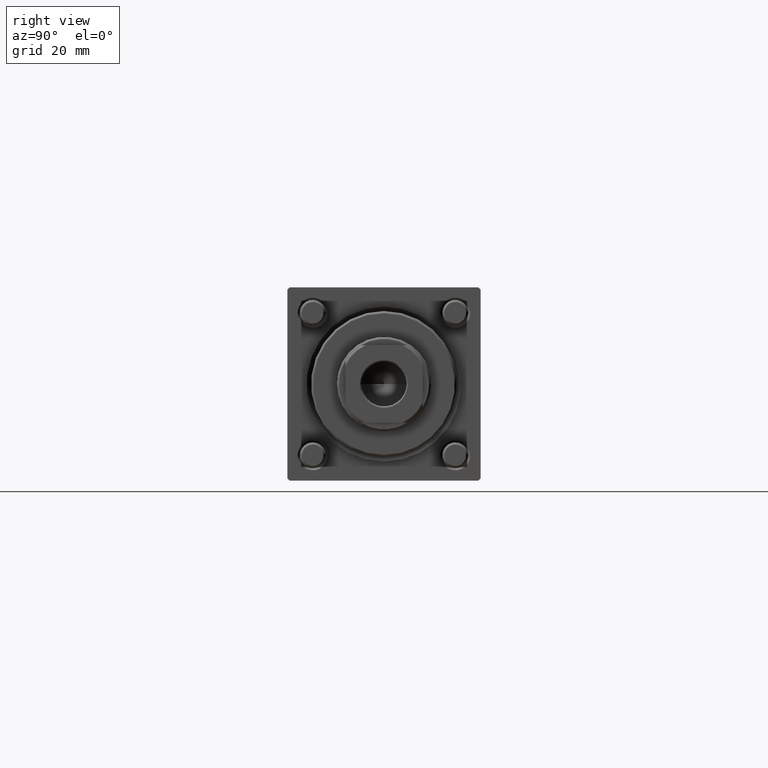
[diagram: clean part render]
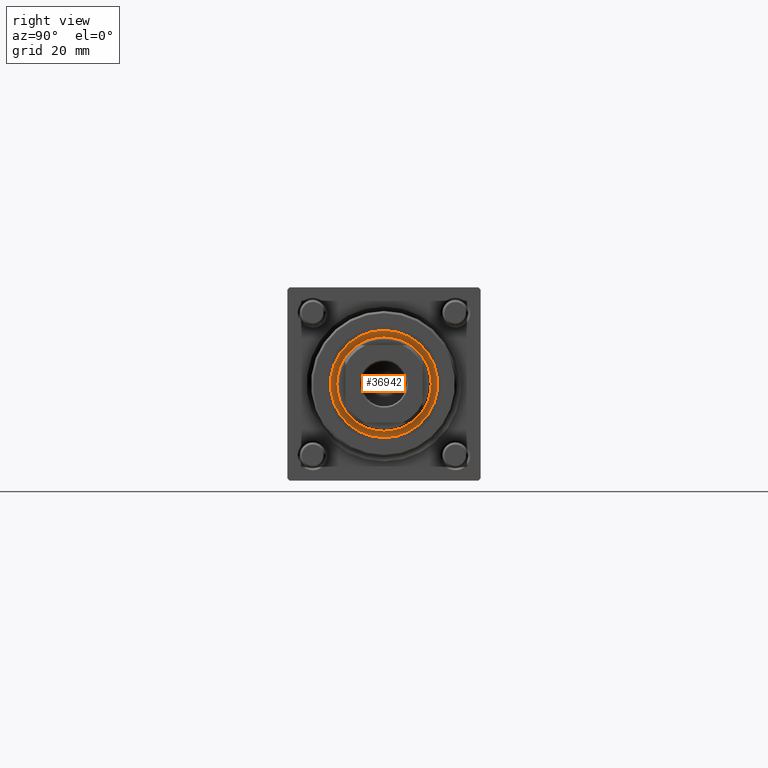
[diagram: same view with one face highlighted and labeled with its STEP entity id]
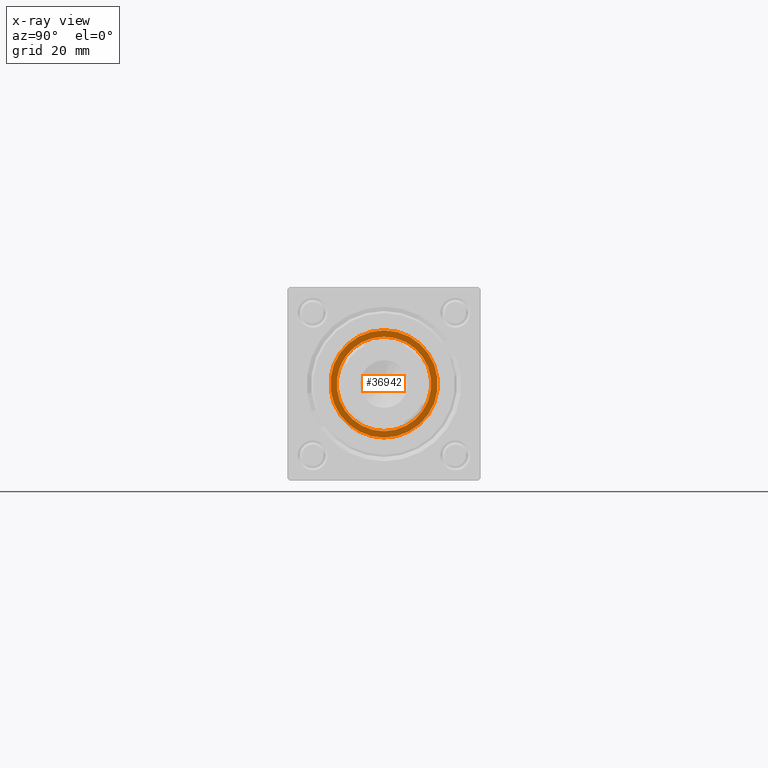
[diagram: x-ray of the same camera — body ghosted, the highlighted face saturated]
A machine part, right view. The second image highlights one B-rep face of the part: STEP entity #36942.
The next image is the same camera in x-ray: the body ghosted, the highlighted face saturated — about 0% of this face is hidden behind the body in this view.
In plain terms, the highlighted planar face has unit normal (1, 0, 0).
Its self-contained STEP definition (entity closure, byte-faithful):
#998 = FACE_BOUND ( 'NONE', #49648, .T. ) ;
#2126 = DIRECTION ( 'NONE',  ( 0.000000000000000000, 0.000000000000000000, 1.000000000000000000 ) ) ;
#2406 = DIRECTION ( 'NONE',  ( 1.000000000000000000, 0.000000000000000000, 0.000000000000000000 ) ) ;
#3265 = CARTESIAN_POINT ( 'NONE',  ( 0.000000000000000000, 0.000000000000000000, 40.20000000000000284 ) ) ;
#3458 = DIRECTION ( 'NONE',  ( 1.000000000000000000, 0.000000000000000000, 0.000000000000000000 ) ) ;
#3530 = ORIENTED_EDGE ( 'NONE', *, *, #40065, .T. ) ;
#3885 = EDGE_LOOP ( 'NONE', ( #35769, #3530 ) ) ;
#7404 = VERTEX_POINT ( 'NONE', #16777 ) ;
#7771 = DIRECTION ( 'NONE',  ( -0.000000000000000000, -0.000000000000000000, -1.000000000000000000 ) ) ;
#13619 = DIRECTION ( 'NONE',  ( 1.000000000000000000, 0.000000000000000000, 0.000000000000000000 ) ) ;
#13798 = CARTESIAN_POINT ( 'NONE',  ( 0.000000000000000000, 0.000000000000000000, 40.20000000000000284 ) ) ;
#13938 = PLANE ( 'NONE',  #20020 ) ;
#15645 = AXIS2_PLACEMENT_3D ( 'NONE', #13798, #31360, #44576 ) ;
#16777 = CARTESIAN_POINT ( 'NONE',  ( -11.00000000000000000, 1.347111479062088405E-15, 40.20000000000000284 ) ) ;
#16838 = EDGE_CURVE ( 'NONE', #42104, #7404, #50525, .T. ) ;
#19333 = CARTESIAN_POINT ( 'NONE',  ( 11.00000000000000000, 0.000000000000000000, 40.20000000000000284 ) ) ;
#19528 = CIRCLE ( 'NONE', #27780, 11.00000000000000000 ) ;
#20020 = AXIS2_PLACEMENT_3D ( 'NONE', #33121, #44716, #22832 ) ;
#22029 = CIRCLE ( 'NONE', #15645, 12.50000000000000000 ) ;
#22832 = DIRECTION ( 'NONE',  ( 1.000000000000000000, 0.000000000000000000, -0.000000000000000000 ) ) ;
#25354 = VERTEX_POINT ( 'NONE', #48661 ) ;
#27058 = CARTESIAN_POINT ( 'NONE',  ( -12.50000000000000000, 1.530808498934191521E-15, 40.20000000000000284 ) ) ;
#27780 = AXIS2_PLACEMENT_3D ( 'NONE', #52711, #48719, #13619 ) ;
#31360 = DIRECTION ( 'NONE',  ( 0.000000000000000000, 0.000000000000000000, 1.000000000000000000 ) ) ;
#33121 = CARTESIAN_POINT ( 'NONE',  ( 0.000000000000000000, 0.000000000000000000, 40.20000000000000284 ) ) ;
#35769 = ORIENTED_EDGE ( 'NONE', *, *, #48485, .T. ) ;
#36942 = ADVANCED_FACE ( 'NONE', ( #45002, #998 ), #13938, .T. ) ;
#38395 = VERTEX_POINT ( 'NONE', #27058 ) ;
#40065 = EDGE_CURVE ( 'NONE', #38395, #25354, #55902, .T. ) ;
#40104 = ORIENTED_EDGE ( 'NONE', *, *, #16838, .T. ) ;
#40309 = ORIENTED_EDGE ( 'NONE', *, *, #55641, .T. ) ;
#41409 = AXIS2_PLACEMENT_3D ( 'NONE', #56611, #7771, #3458 ) ;
#42104 = VERTEX_POINT ( 'NONE', #19333 ) ;
#44576 = DIRECTION ( 'NONE',  ( 1.000000000000000000, 0.000000000000000000, 0.000000000000000000 ) ) ;
#44716 = DIRECTION ( 'NONE',  ( 0.000000000000000000, 0.000000000000000000, 1.000000000000000000 ) ) ;
#45002 = FACE_OUTER_BOUND ( 'NONE', #3885, .T. ) ;
#48485 = EDGE_CURVE ( 'NONE', #25354, #38395, #22029, .T. ) ;
#48661 = CARTESIAN_POINT ( 'NONE',  ( 12.50000000000000000, 0.000000000000000000, 40.20000000000000284 ) ) ;
#48719 = DIRECTION ( 'NONE',  ( -0.000000000000000000, -0.000000000000000000, -1.000000000000000000 ) ) ;
#49648 = EDGE_LOOP ( 'NONE', ( #40104, #40309 ) ) ;
#50525 = CIRCLE ( 'NONE', #41409, 11.00000000000000000 ) ;
#51348 = AXIS2_PLACEMENT_3D ( 'NONE', #3265, #2126, #2406 ) ;
#52711 = CARTESIAN_POINT ( 'NONE',  ( 0.000000000000000000, 0.000000000000000000, 40.20000000000000284 ) ) ;
#55641 = EDGE_CURVE ( 'NONE', #7404, #42104, #19528, .T. ) ;
#55902 = CIRCLE ( 'NONE', #51348, 12.50000000000000000 ) ;
#56611 = CARTESIAN_POINT ( 'NONE',  ( 0.000000000000000000, 0.000000000000000000, 40.20000000000000284 ) ) ;